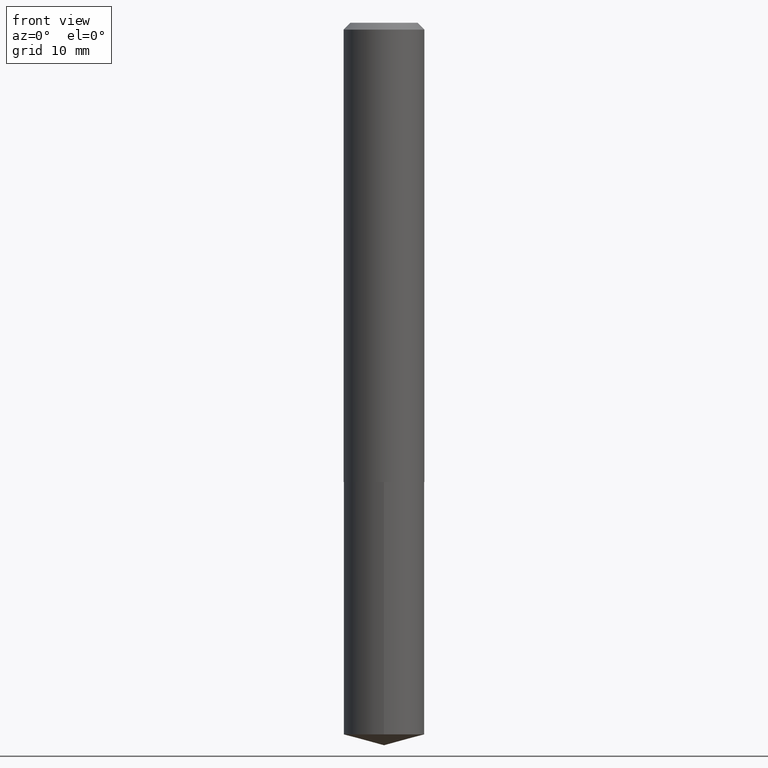
[diagram: clean part render]
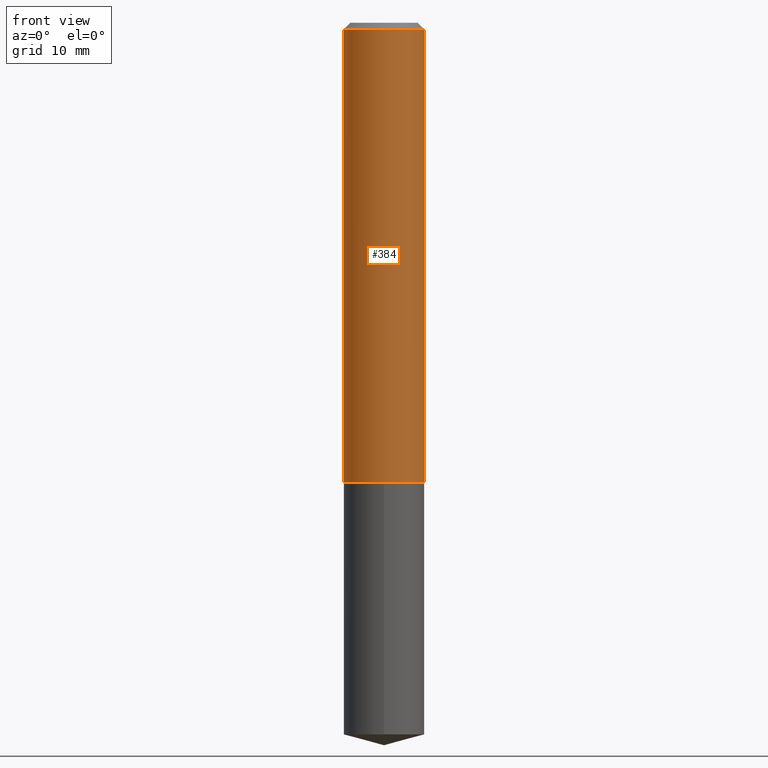
[diagram: same view with one face highlighted and labeled with its STEP entity id]
A machine part, front view. The second image highlights one B-rep face of the part: STEP entity #384.
In plain terms, the highlighted cylindrical surface (partial cylindrical patch) has radius 4.7003 mm, axis along (-0, 0, 1).
Its self-contained STEP definition (entity closure, byte-faithful):
#5 = CARTESIAN_POINT ( 'NONE',  ( 5.140130883720539947E-29, -7.338744626114409370E-15, -2.101900000000000546 ) ) ;
#12 = DIRECTION ( 'NONE',  ( -2.445468806185136597E-29, 3.491481338843145583E-15, 1.000000000000000000 ) ) ;
#41 = VERTEX_POINT ( 'NONE', #186 ) ;
#58 = EDGE_CURVE ( 'NONE', #41, #71, #288, .T. ) ;
#63 = CARTESIAN_POINT ( 'NONE',  ( -0.1850500000000001311, 1.314859332524066325E-15, -9.102489384516709155E-30 ) ) ;
#71 = VERTEX_POINT ( 'NONE', #128 ) ;
#93 = FACE_OUTER_BOUND ( 'NONE', #176, .T. ) ;
#105 = DIRECTION ( 'NONE',  ( -2.445468806185136877E-29, 3.491481338843145188E-15, 1.000000000000000000 ) ) ;
#128 = CARTESIAN_POINT ( 'NONE',  ( 0.1850500000000000200, -1.401306035344692979E-15, -0.03125000000000021511 ) ) ;
#138 = VERTEX_POINT ( 'NONE', #145 ) ;
#145 = CARTESIAN_POINT ( 'NONE',  ( -0.1850500000000000200, -2.409067376452562318E-15, -0.03125000000000021511 ) ) ;
#155 = VECTOR ( 'NONE', #273, 39.37007874015748143 ) ;
#156 = LINE ( 'NONE', #63, #155 ) ;
#174 = ORIENTED_EDGE ( 'NONE', *, *, #58, .T. ) ;
#176 = EDGE_LOOP ( 'NONE', ( #289, #323, #174, #190 ) ) ;
#182 = CARTESIAN_POINT ( 'NONE',  ( 7.642090019328604414E-31, -1.091087918388490513E-16, -0.03125000000000021511 ) ) ;
#186 = CARTESIAN_POINT ( 'NONE',  ( 0.1850500000000002143, -8.630941869620254432E-15, -2.101900000000000546 ) ) ;
#190 = ORIENTED_EDGE ( 'NONE', *, *, #211, .F. ) ;
#211 = EDGE_CURVE ( 'NONE', #138, #71, #297, .T. ) ;
#214 = DIRECTION ( 'NONE',  ( 1.000000000000000000, -6.982962677686268288E-15, 0.000000000000000000 ) ) ;
#220 = AXIS2_PLACEMENT_3D ( 'NONE', #282, #12, #368 ) ;
#226 = DIRECTION ( 'NONE',  ( 1.000000000000000000, -6.982962677686267499E-15, 0.000000000000000000 ) ) ;
#240 = CYLINDRICAL_SURFACE ( 'NONE', #220, 0.1850500000000001311 ) ;
#243 = DIRECTION ( 'NONE',  ( -2.445468806185136597E-29, 3.491481338843145583E-15, 1.000000000000000000 ) ) ;
#260 = EDGE_CURVE ( 'NONE', #266, #138, #156, .T. ) ;
#266 = VERTEX_POINT ( 'NONE', #294 ) ;
#273 = DIRECTION ( 'NONE',  ( -2.445468806185136877E-29, 3.491481338843145188E-15, 1.000000000000000000 ) ) ;
#282 = CARTESIAN_POINT ( 'NONE',  ( 0.000000000000000000, 0.000000000000000000, 0.000000000000000000 ) ) ;
#284 = AXIS2_PLACEMENT_3D ( 'NONE', #182, #336, #226 ) ;
#288 = LINE ( 'NONE', #373, #307 ) ;
#289 = ORIENTED_EDGE ( 'NONE', *, *, #260, .F. ) ;
#294 = CARTESIAN_POINT ( 'NONE',  ( -0.1850500000000002143, -6.023885293590342059E-15, -2.101900000000000546 ) ) ;
#297 = CIRCLE ( 'NONE', #284, 0.1850500000000000200 ) ;
#303 = CIRCLE ( 'NONE', #349, 0.1850500000000002143 ) ;
#307 = VECTOR ( 'NONE', #105, 39.37007874015748143 ) ;
#323 = ORIENTED_EDGE ( 'NONE', *, *, #359, .T. ) ;
#336 = DIRECTION ( 'NONE',  ( -2.445468806185136597E-29, 3.491481338843145583E-15, 1.000000000000000000 ) ) ;
#349 = AXIS2_PLACEMENT_3D ( 'NONE', #5, #243, #214 ) ;
#359 = EDGE_CURVE ( 'NONE', #266, #41, #303, .T. ) ;
#368 = DIRECTION ( 'NONE',  ( 1.000000000000000000, -6.982962677686267499E-15, 4.876176775795935793E-29 ) ) ;
#373 = CARTESIAN_POINT ( 'NONE',  ( 0.1850500000000001311, -1.292197243505844668E-15, 9.023365123610386073E-30 ) ) ;
#384 = ADVANCED_FACE ( 'NONE', ( #93 ), #240, .T. ) ;